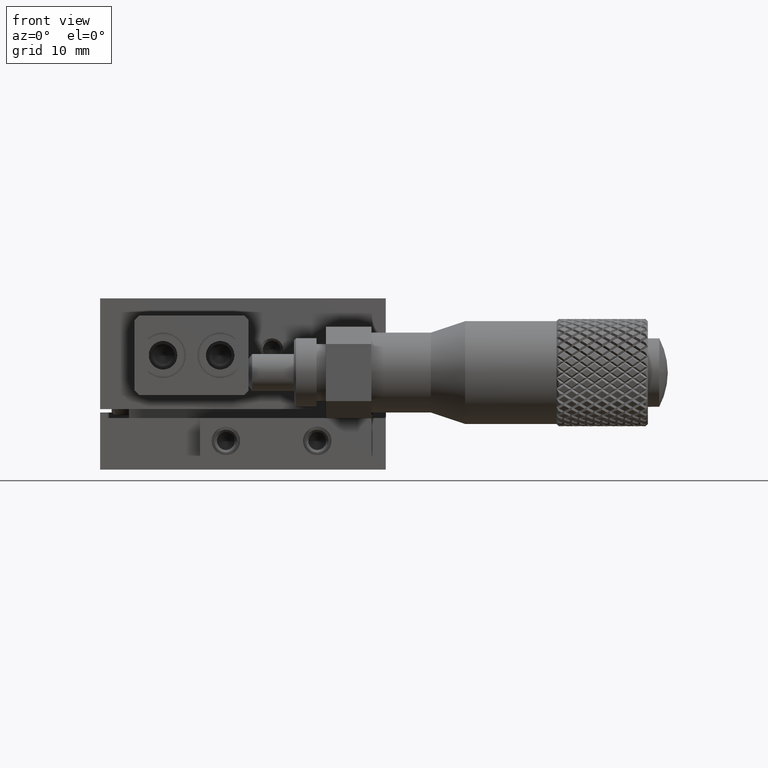
[diagram: clean part render]
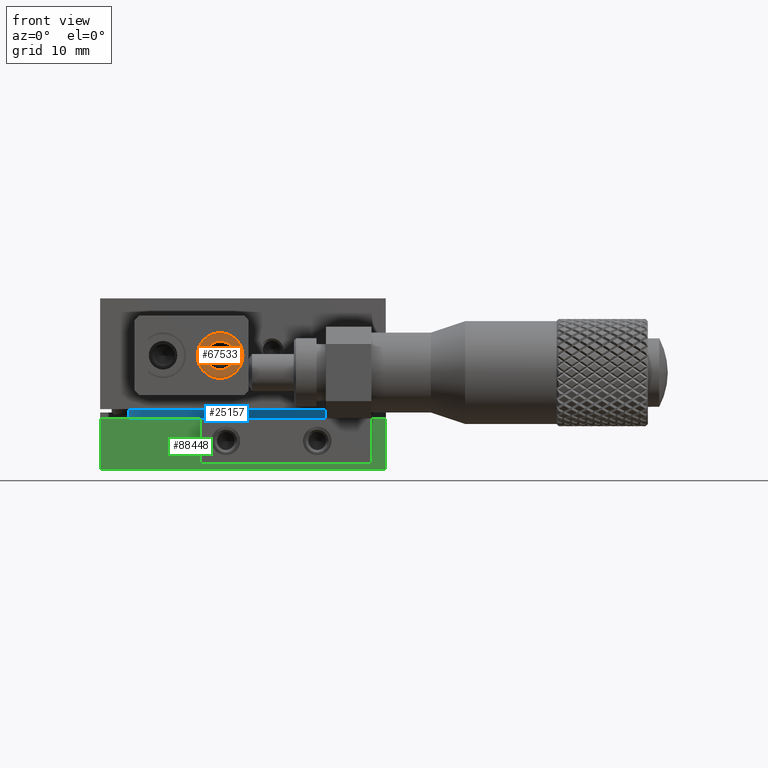
[diagram: same view with three faces highlighted in distinct colors, each labeled with its STEP entity id]
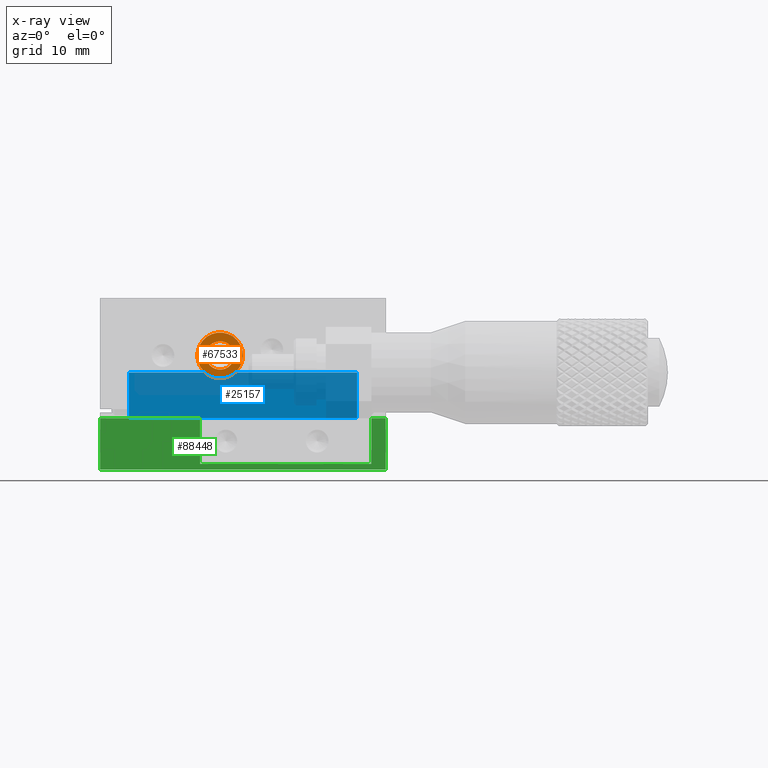
[diagram: x-ray of the same camera — body ghosted, the three highlighted faces saturated]
A machine part, front view with three faces highlighted in distinct colors.
The next image is the same camera in x-ray (body ghosted, the three faces saturated) — at least one of them is partly hidden behind the body in this view.
Their STEP definitions:

[orange] entity #67533 — the highlighted planar face has unit normal (0, -1, 0).
#2246 = DIRECTION ( 'NONE',  ( -1.000000000000000000, 0.000000000000000000, 0.000000000000000000 ) ) ;
#2651 = AXIS2_PLACEMENT_3D ( 'NONE', #41133, #3368, #10451 ) ;
#3368 = DIRECTION ( 'NONE',  ( 0.000000000000000000, -1.000000000000000000, 0.000000000000000000 ) ) ;
#10451 = DIRECTION ( 'NONE',  ( -1.000000000000000000, 0.000000000000000000, 0.000000000000000000 ) ) ;
#12428 = EDGE_LOOP ( 'NONE', ( #28097 ) ) ;
#19419 = FACE_OUTER_BOUND ( 'NONE', #57963, .T. ) ;
#19629 = CARTESIAN_POINT ( 'NONE',  ( -2.000000000000000000, -18.00000000000000000, 9.999999999999998224 ) ) ;
#26053 = VERTEX_POINT ( 'NONE', #91110 ) ;
#27624 = DIRECTION ( 'NONE',  ( -0.000000000000000000, 1.000000000000000000, -0.000000000000000000 ) ) ;
#27903 = CARTESIAN_POINT ( 'NONE',  ( -3.250000000000000444, -18.00000000000000000, 9.999999999999998224 ) ) ;
#28097 = ORIENTED_EDGE ( 'NONE', *, *, #80498, .T. ) ;
#31067 = CARTESIAN_POINT ( 'NONE',  ( -2.000000000000000000, -18.00000000000000000, 9.999999999999998224 ) ) ;
#31729 = FACE_BOUND ( 'NONE', #12428, .T. ) ;
#41133 = CARTESIAN_POINT ( 'NONE',  ( 0.000000000000000000, -18.00000000000000000, 9.999999999999998224 ) ) ;
#45695 = DIRECTION ( 'NONE',  ( 0.000000000000000000, -1.000000000000000000, 0.000000000000000000 ) ) ;
#48261 = CIRCLE ( 'NONE', #82945, 2.000000000000000000 ) ;
#57963 = EDGE_LOOP ( 'NONE', ( #79677 ) ) ;
#63781 = VERTEX_POINT ( 'NONE', #27903 ) ;
#67533 = ADVANCED_FACE ( 'NONE', ( #19419, #31729 ), #83127, .T. ) ;
#72539 = CIRCLE ( 'NONE', #77028, 1.250000000000000222 ) ;
#77028 = AXIS2_PLACEMENT_3D ( 'NONE', #19629, #27624, #91751 ) ;
#79677 = ORIENTED_EDGE ( 'NONE', *, *, #82927, .T. ) ;
#80498 = EDGE_CURVE ( 'NONE', #63781, #63781, #72539, .T. ) ;
#82927 = EDGE_CURVE ( 'NONE', #26053, #26053, #48261, .T. ) ;
#82945 = AXIS2_PLACEMENT_3D ( 'NONE', #31067, #45695, #2246 ) ;
#83127 = PLANE ( 'NONE',  #2651 ) ;
#91110 = CARTESIAN_POINT ( 'NONE',  ( -4.000000000000000000, -18.00000000000000000, 9.999999999999998224 ) ) ;
#91751 = DIRECTION ( 'NONE',  ( -1.000000000000000000, 0.000000000000000000, 0.000000000000000000 ) ) ;

[blue] entity #25157 — the highlighted planar face has unit normal (0, -1, -0).
#2329 = CARTESIAN_POINT ( 'NONE',  ( 9.999999999999998224, -10.49999999999999822, 8.500000000000000000 ) ) ;
#11245 = ORIENTED_EDGE ( 'NONE', *, *, #76020, .T. ) ;
#11395 = CARTESIAN_POINT ( 'NONE',  ( -12.50000000000000000, -10.49999999999999822, 4.500000000000000888 ) ) ;
#12791 = PLANE ( 'NONE',  #77870 ) ;
#17505 = CARTESIAN_POINT ( 'NONE',  ( 9.999999999999998224, -10.49999999999999822, 4.500000000000000888 ) ) ;
#18697 = VERTEX_POINT ( 'NONE', #85678 ) ;
#18766 = CARTESIAN_POINT ( 'NONE',  ( -7.960392194562888157, -10.49999999999999822, 4.500000000000000888 ) ) ;
#21115 = ORIENTED_EDGE ( 'NONE', *, *, #45449, .T. ) ;
#24506 = ORIENTED_EDGE ( 'NONE', *, *, #63335, .F. ) ;
#25157 = ADVANCED_FACE ( 'NONE', ( #77435 ), #12791, .T. ) ;
#25464 = DIRECTION ( 'NONE',  ( 0.000000000000000000, 0.000000000000000000, -1.000000000000000000 ) ) ;
#25893 = VECTOR ( 'NONE', #40292, 1000.000000000000000 ) ;
#27741 = VERTEX_POINT ( 'NONE', #18766 ) ;
#32867 = VERTEX_POINT ( 'NONE', #48052 ) ;
#34663 = VECTOR ( 'NONE', #40201, 1000.000000000000000 ) ;
#38251 = DIRECTION ( 'NONE',  ( -1.000000000000000000, 0.000000000000000000, -0.000000000000000000 ) ) ;
#40201 = DIRECTION ( 'NONE',  ( 1.000000000000000000, 0.000000000000000000, 0.000000000000000000 ) ) ;
#40292 = DIRECTION ( 'NONE',  ( 1.000000000000000000, -0.000000000000000000, 0.000000000000000000 ) ) ;
#40915 = VECTOR ( 'NONE', #60445, 1000.000000000000000 ) ;
#42602 = VERTEX_POINT ( 'NONE', #63471 ) ;
#43769 = LINE ( 'NONE', #73493, #83264 ) ;
#43824 = VECTOR ( 'NONE', #38251, 1000.000000000000000 ) ;
#44726 = VERTEX_POINT ( 'NONE', #53395 ) ;
#45378 = LINE ( 'NONE', #17505, #40915 ) ;
#45449 = EDGE_CURVE ( 'NONE', #18697, #89571, #59475, .T. ) ;
#47295 = LINE ( 'NONE', #11395, #34663 ) ;
#48052 = CARTESIAN_POINT ( 'NONE',  ( 7.960392194562893486, -10.49999999999999822, 4.500000000000000888 ) ) ;
#50428 = EDGE_CURVE ( 'NONE', #44726, #27741, #89818, .T. ) ;
#53395 = CARTESIAN_POINT ( 'NONE',  ( -10.00000000000000000, -10.50000000000000178, 4.500000000000000888 ) ) ;
#55248 = EDGE_CURVE ( 'NONE', #32867, #42602, #45378, .T. ) ;
#57493 = EDGE_CURVE ( 'NONE', #44726, #89571, #43769, .T. ) ;
#59475 = LINE ( 'NONE', #2329, #43824 ) ;
#60445 = DIRECTION ( 'NONE',  ( 1.000000000000000000, -0.000000000000000000, 0.000000000000000000 ) ) ;
#60617 = CARTESIAN_POINT ( 'NONE',  ( 9.999999999999998224, -10.49999999999999822, 4.500000000000000888 ) ) ;
#62482 = ORIENTED_EDGE ( 'NONE', *, *, #50428, .T. ) ;
#63286 = DIRECTION ( 'NONE',  ( -1.000000000000000000, 0.000000000000000000, -0.000000000000000000 ) ) ;
#63335 = EDGE_CURVE ( 'NONE', #18697, #42602, #90983, .T. ) ;
#63471 = CARTESIAN_POINT ( 'NONE',  ( 10.00000000000000178, -10.50000000000000178, 4.500000000000000888 ) ) ;
#65456 = CARTESIAN_POINT ( 'NONE',  ( -10.00000000000000000, -10.50000000000000178, 8.500000000000000000 ) ) ;
#65886 = EDGE_LOOP ( 'NONE', ( #62482, #11245, #76288, #24506, #21115, #70593 ) ) ;
#70354 = DIRECTION ( 'NONE',  ( 0.000000000000000000, -1.000000000000000000, -0.000000000000000000 ) ) ;
#70593 = ORIENTED_EDGE ( 'NONE', *, *, #57493, .F. ) ;
#72556 = DIRECTION ( 'NONE',  ( -0.000000000000000000, -0.000000000000000000, 1.000000000000000000 ) ) ;
#73493 = CARTESIAN_POINT ( 'NONE',  ( -10.00000000000000000, -10.49999999999999822, 8.500000000000000000 ) ) ;
#76020 = EDGE_CURVE ( 'NONE', #27741, #32867, #47295, .T. ) ;
#76288 = ORIENTED_EDGE ( 'NONE', *, *, #55248, .T. ) ;
#76409 = CARTESIAN_POINT ( 'NONE',  ( 9.999999999999998224, -10.49999999999999822, 8.500000000000000000 ) ) ;
#77408 = VECTOR ( 'NONE', #25464, 1000.000000000000000 ) ;
#77435 = FACE_OUTER_BOUND ( 'NONE', #65886, .T. ) ;
#77870 = AXIS2_PLACEMENT_3D ( 'NONE', #78849, #70354, #63286 ) ;
#78849 = CARTESIAN_POINT ( 'NONE',  ( 9.999999999999998224, -10.49999999999999822, 8.500000000000000000 ) ) ;
#83264 = VECTOR ( 'NONE', #72556, 1000.000000000000000 ) ;
#85678 = CARTESIAN_POINT ( 'NONE',  ( 10.00000000000000178, -10.50000000000000178, 8.500000000000000000 ) ) ;
#89571 = VERTEX_POINT ( 'NONE', #65456 ) ;
#89818 = LINE ( 'NONE', #60617, #25893 ) ;
#90983 = LINE ( 'NONE', #76409, #77408 ) ;

[green] entity #88448 — the highlighted planar face has unit normal (-0, 1, 0).
#1808 = CARTESIAN_POINT ( 'NONE',  ( -3.750000000000000000, -12.50000000000000000, 4.500000000000000888 ) ) ;
#3056 = LINE ( 'NONE', #32792, #9083 ) ;
#3517 = EDGE_CURVE ( 'NONE', #43526, #82062, #75425, .T. ) ;
#4322 = VERTEX_POINT ( 'NONE', #56760 ) ;
#4682 = ORIENTED_EDGE ( 'NONE', *, *, #31449, .F. ) ;
#9083 = VECTOR ( 'NONE', #26180, 1000.000000000000000 ) ;
#10922 = CARTESIAN_POINT ( 'NONE',  ( 12.50000000000000000, -12.50000000000000000, 0.000000000000000000 ) ) ;
#12099 = CARTESIAN_POINT ( 'NONE',  ( -3.750000000000000000, -12.50000000000000000, 0.000000000000000000 ) ) ;
#13268 = LINE ( 'NONE', #83597, #20944 ) ;
#15502 = FACE_OUTER_BOUND ( 'NONE', #51052, .T. ) ;
#20763 = VERTEX_POINT ( 'NONE', #10922 ) ;
#20944 = VECTOR ( 'NONE', #70364, 1000.000000000000000 ) ;
#21320 = LINE ( 'NONE', #50086, #59641 ) ;
#22434 = EDGE_CURVE ( 'NONE', #20763, #47037, #21320, .T. ) ;
#23056 = CARTESIAN_POINT ( 'NONE',  ( 12.50000000000000000, -12.50000000000000000, 0.000000000000000000 ) ) ;
#23193 = DIRECTION ( 'NONE',  ( 1.000000000000000000, 0.000000000000000000, 0.000000000000000000 ) ) ;
#23951 = VERTEX_POINT ( 'NONE', #25602 ) ;
#25058 = EDGE_CURVE ( 'NONE', #75806, #84269, #62310, .T. ) ;
#25602 = CARTESIAN_POINT ( 'NONE',  ( -3.750000000000000000, -12.50000000000000000, 0.5000000000000004441 ) ) ;
#26180 = DIRECTION ( 'NONE',  ( 1.000000000000000000, 0.000000000000000000, 0.000000000000000000 ) ) ;
#31449 = EDGE_CURVE ( 'NONE', #20763, #4322, #13268, .T. ) ;
#32792 = CARTESIAN_POINT ( 'NONE',  ( 12.50000000000000000, -12.50000000000000000, 4.500000000000000888 ) ) ;
#34228 = CARTESIAN_POINT ( 'NONE',  ( 11.25000000000000000, -12.50000000000000000, 0.5000000000000004441 ) ) ;
#34275 = DIRECTION ( 'NONE',  ( 0.000000000000000000, 0.000000000000000000, -1.000000000000000000 ) ) ;
#34754 = LINE ( 'NONE', #12099, #52967 ) ;
#35338 = CARTESIAN_POINT ( 'NONE',  ( 11.25000000000000000, -12.50000000000000000, 4.500000000000000888 ) ) ;
#43526 = VERTEX_POINT ( 'NONE', #34228 ) ;
#43808 = PLANE ( 'NONE',  #48756 ) ;
#47037 = VERTEX_POINT ( 'NONE', #72727 ) ;
#47753 = EDGE_CURVE ( 'NONE', #84269, #23951, #34754, .T. ) ;
#48136 = CARTESIAN_POINT ( 'NONE',  ( 12.50000000000000000, -12.50000000000000000, 4.500000000000000888 ) ) ;
#48475 = EDGE_CURVE ( 'NONE', #23951, #43526, #85909, .T. ) ;
#48756 = AXIS2_PLACEMENT_3D ( 'NONE', #23056, #65991, #87180 ) ;
#50086 = CARTESIAN_POINT ( 'NONE',  ( 12.50000000000000000, -12.50000000000000000, 0.000000000000000000 ) ) ;
#50662 = CARTESIAN_POINT ( 'NONE',  ( -12.50000000000000000, -12.50000000000000000, 4.500000000000000888 ) ) ;
#51052 = EDGE_LOOP ( 'NONE', ( #75921, #84118, #70597, #4682, #89011, #67026, #58077, #92014 ) ) ;
#52967 = VECTOR ( 'NONE', #34275, 1000.000000000000000 ) ;
#56760 = CARTESIAN_POINT ( 'NONE',  ( -12.50000000000000000, -12.50000000000000000, 0.000000000000000000 ) ) ;
#58077 = ORIENTED_EDGE ( 'NONE', *, *, #3517, .F. ) ;
#59641 = VECTOR ( 'NONE', #71796, 1000.000000000000000 ) ;
#61743 = CARTESIAN_POINT ( 'NONE',  ( 11.25000000000000000, -12.50000000000000000, 0.000000000000000000 ) ) ;
#62086 = EDGE_CURVE ( 'NONE', #75806, #4322, #84128, .T. ) ;
#62310 = LINE ( 'NONE', #48136, #65906 ) ;
#65906 = VECTOR ( 'NONE', #76926, 1000.000000000000000 ) ;
#65991 = DIRECTION ( 'NONE',  ( -0.000000000000000000, 1.000000000000000000, 0.000000000000000000 ) ) ;
#67026 = ORIENTED_EDGE ( 'NONE', *, *, #83349, .F. ) ;
#68804 = DIRECTION ( 'NONE',  ( -0.000000000000000000, -0.000000000000000000, 1.000000000000000000 ) ) ;
#69542 = VECTOR ( 'NONE', #23193, 1000.000000000000000 ) ;
#70364 = DIRECTION ( 'NONE',  ( -1.000000000000000000, -0.000000000000000000, -0.000000000000000000 ) ) ;
#70597 = ORIENTED_EDGE ( 'NONE', *, *, #62086, .T. ) ;
#71796 = DIRECTION ( 'NONE',  ( -0.000000000000000000, -0.000000000000000000, 1.000000000000000000 ) ) ;
#72727 = CARTESIAN_POINT ( 'NONE',  ( 12.50000000000000000, -12.50000000000000000, 4.500000000000000888 ) ) ;
#72925 = VECTOR ( 'NONE', #92091, 1000.000000000000000 ) ;
#75425 = LINE ( 'NONE', #61743, #87782 ) ;
#75806 = VERTEX_POINT ( 'NONE', #50662 ) ;
#75921 = ORIENTED_EDGE ( 'NONE', *, *, #47753, .F. ) ;
#76926 = DIRECTION ( 'NONE',  ( 1.000000000000000000, 0.000000000000000000, 0.000000000000000000 ) ) ;
#77056 = CARTESIAN_POINT ( 'NONE',  ( -12.50000000000000000, -12.50000000000000000, 0.000000000000000000 ) ) ;
#82062 = VERTEX_POINT ( 'NONE', #35338 ) ;
#83349 = EDGE_CURVE ( 'NONE', #82062, #47037, #3056, .T. ) ;
#83597 = CARTESIAN_POINT ( 'NONE',  ( -12.50000000000000000, -12.50000000000000000, 0.000000000000000000 ) ) ;
#84118 = ORIENTED_EDGE ( 'NONE', *, *, #25058, .F. ) ;
#84128 = LINE ( 'NONE', #77056, #72925 ) ;
#84269 = VERTEX_POINT ( 'NONE', #1808 ) ;
#85909 = LINE ( 'NONE', #87789, #69542 ) ;
#87180 = DIRECTION ( 'NONE',  ( 1.000000000000000000, 0.000000000000000000, 0.000000000000000000 ) ) ;
#87782 = VECTOR ( 'NONE', #68804, 1000.000000000000000 ) ;
#87789 = CARTESIAN_POINT ( 'NONE',  ( 12.50000000000000000, -12.50000000000000000, 0.5000000000000004441 ) ) ;
#88448 = ADVANCED_FACE ( 'NONE', ( #15502 ), #43808, .F. ) ;
#89011 = ORIENTED_EDGE ( 'NONE', *, *, #22434, .T. ) ;
#92014 = ORIENTED_EDGE ( 'NONE', *, *, #48475, .F. ) ;
#92091 = DIRECTION ( 'NONE',  ( 0.000000000000000000, 0.000000000000000000, -1.000000000000000000 ) ) ;